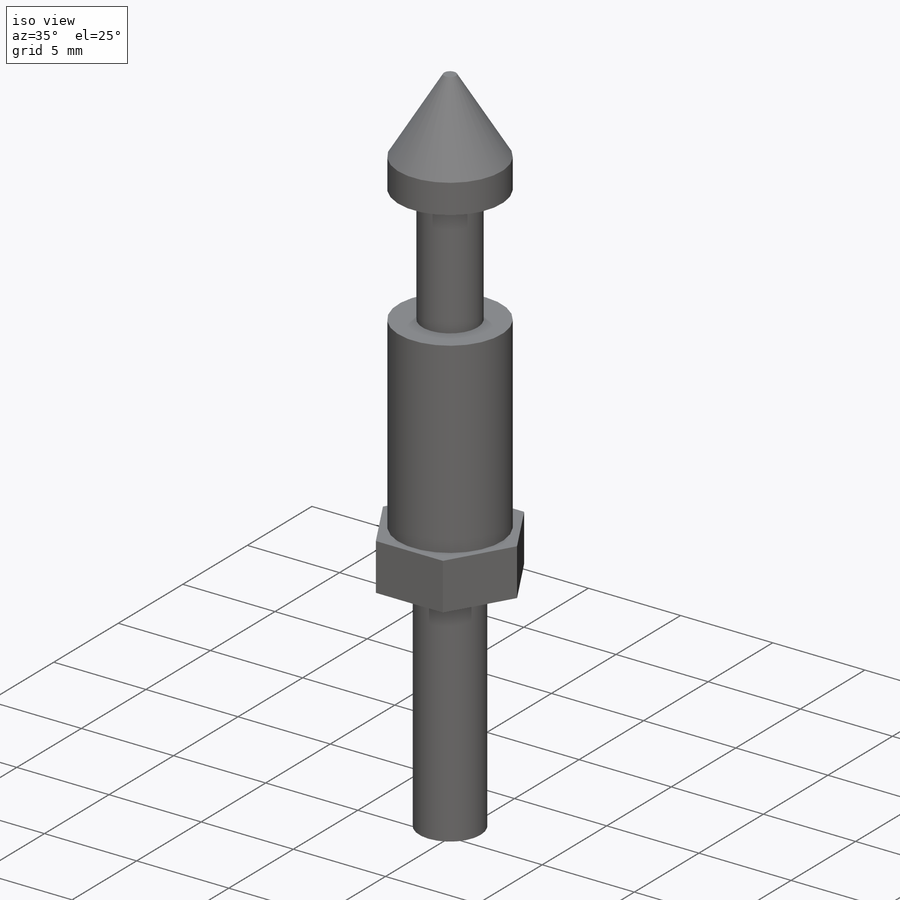
[diagram: iso view]
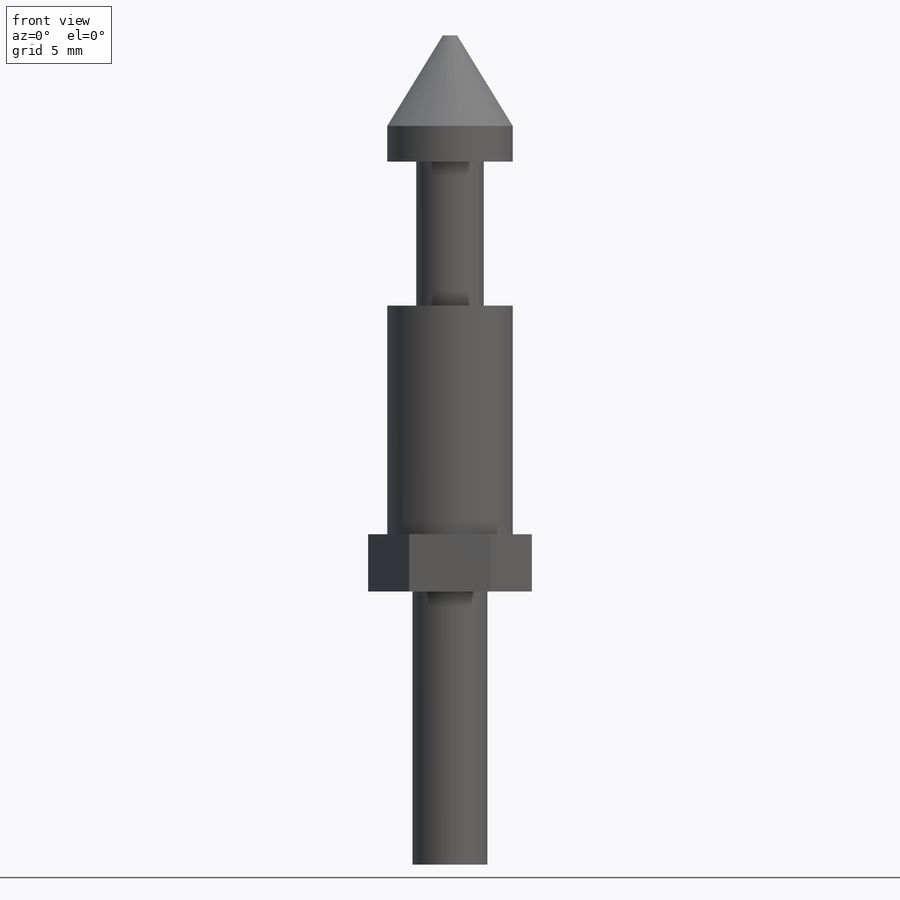
[diagram: front view]
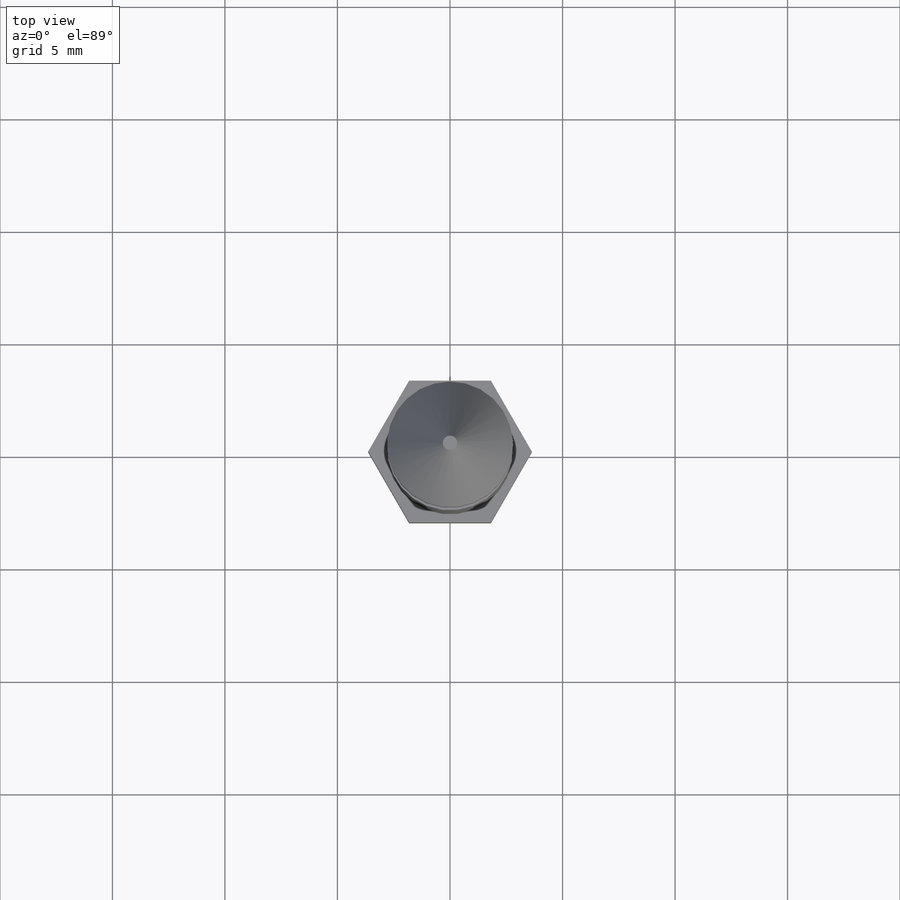
[diagram: top view]
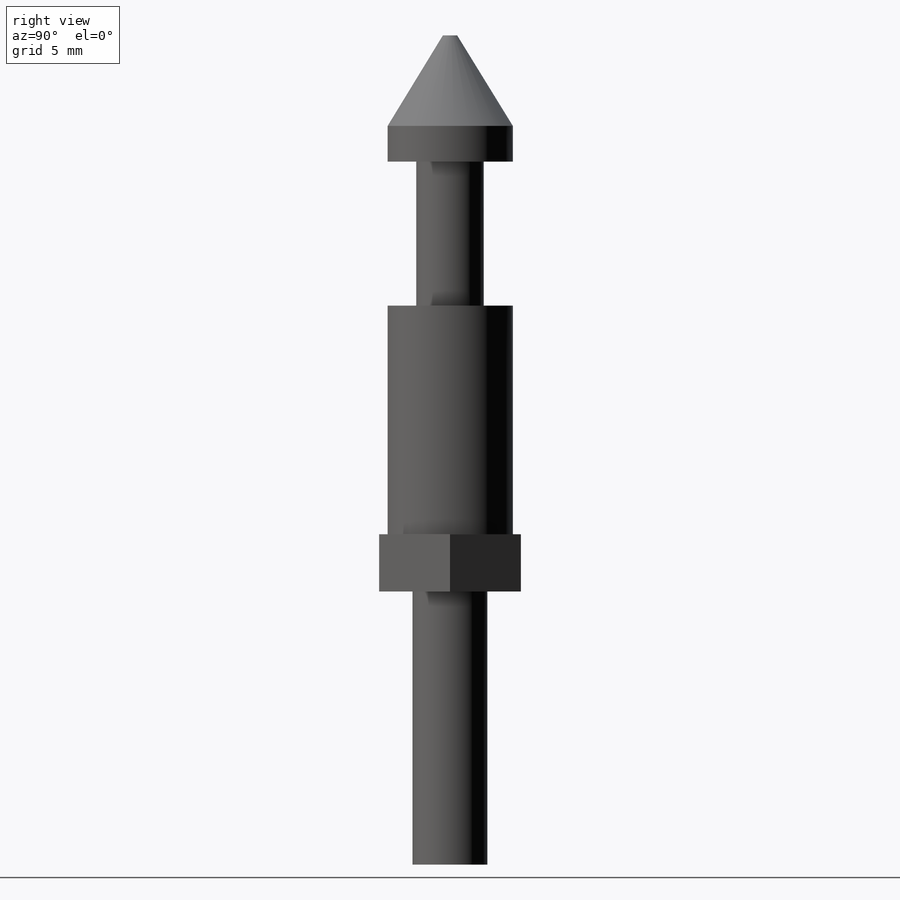
[diagram: right view]
SOLIDWORKS PART (.sldprt)
format: sldprt  version: not decoded by parser v0  size: 168,448 bytes
history: native  units: mm
features: sketch x4, revolve x2, material x1, extrude x1, plane x1 (+12 scaffold rows collapsed)
feature tree (21):
  scaffold x12  (default folders/planes/origin — collapsed)
  material  "Material <not specified>"
  sketch  "Sketch1"  dims[D1=12.1412mm D2=12.7mm D3=6.4008mm D4=1.5875mm D5=24.7142mm D6=5.588mm D7=0.635mm D8=2.9972mm D9=5.588mm D10=3.3274mm]
  revolve  "Revolve1"  Angle=360deg
  sketch  "Sketch2"  dims[D1=6.2992mm]
  extrude  "Boss-Extrude1"  Depth=2.54mm
  sketch  "Sketch3"  dims[D1=1.524mm]
  revolve  "Revolve2-Mini_Post_Rubber_supress"  Angle=360deg
  plane  "Plane1"  Offset=3.175mm
  sketch  "Sketch4"  dims[D1=8.0772mm]
decode coverage: 7 of 7 modeling features carry decoded parameters
note: suppression state not decoded; provenance and decode notes live in map.json
